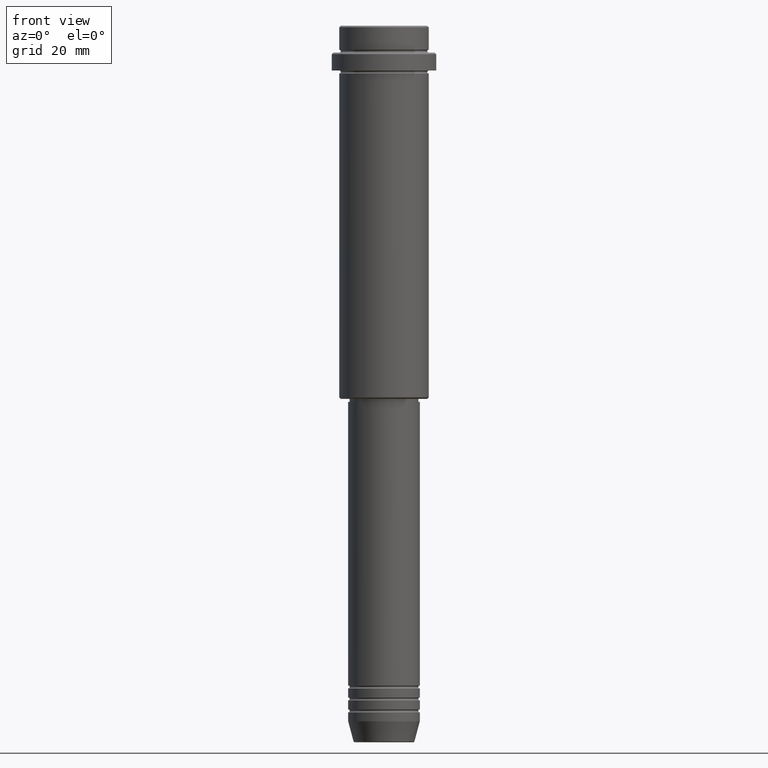
[diagram: clean part render]
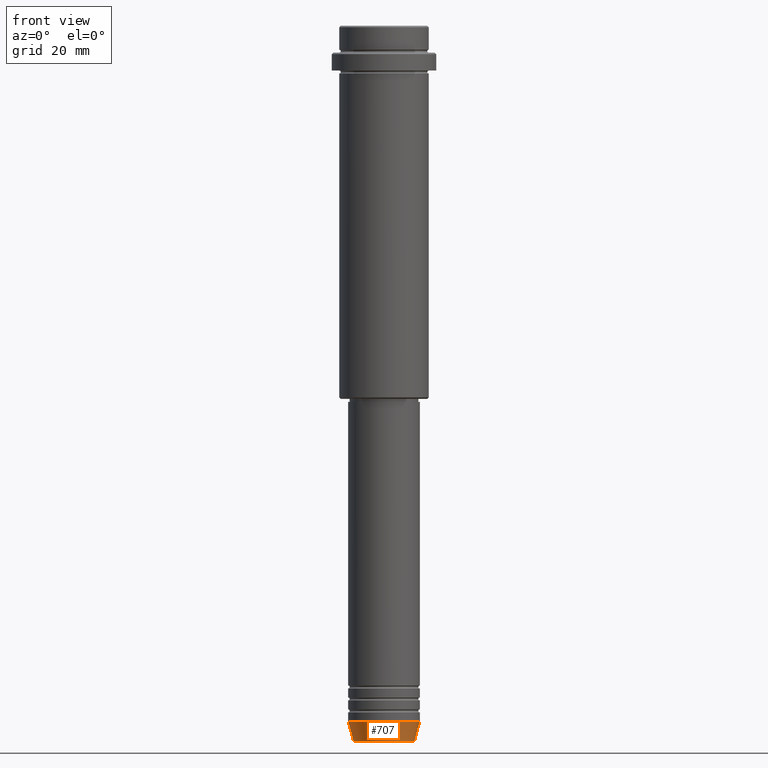
[diagram: same view with one face highlighted and labeled with its STEP entity id]
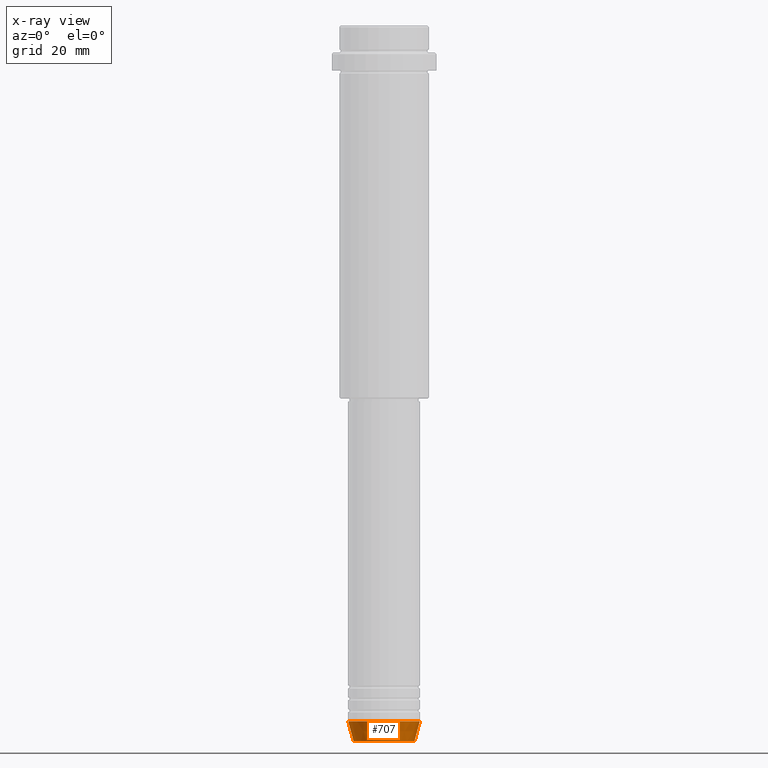
[diagram: x-ray of the same camera — body ghosted, the highlighted face saturated]
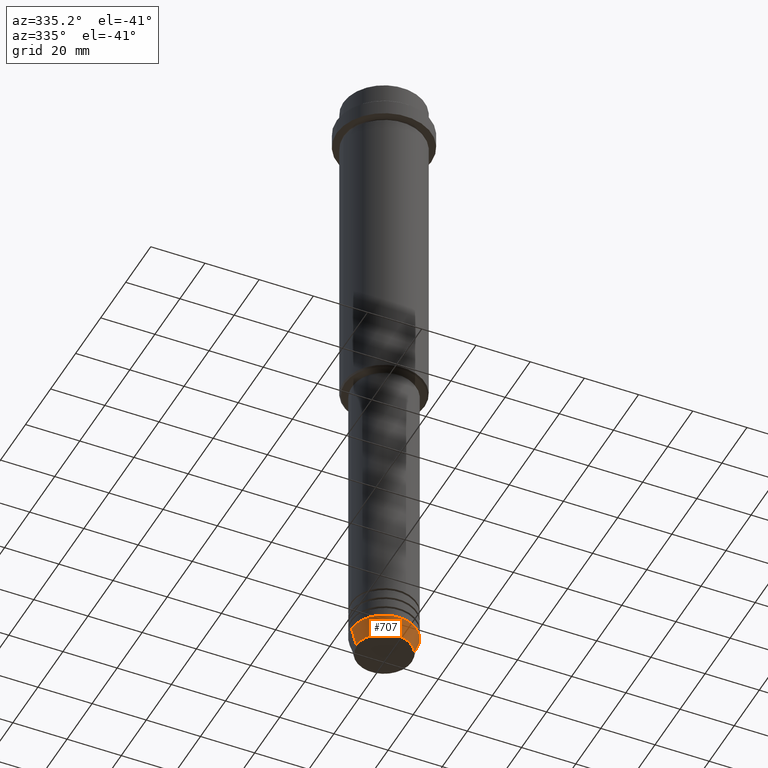
[diagram: same view with one face highlighted and labeled with its STEP entity id]
A machine part, front view. The second image highlights one B-rep face of the part: STEP entity #707.
The next image is the same camera in x-ray: the body ghosted, the highlighted face saturated — about 0% of this face is hidden behind the body in this view.
A second angle (auxiliary view) of the same face is appended — the face is thin or edge-on in the first view.
In plain terms, the highlighted conical surface has half-angle 15 deg.
Its self-contained STEP definition (entity closure, byte-faithful):
#3 = CONICAL_SURFACE ( 'NONE', #1357, 12.00000000000000000, 0.2617993877991500740 ) ;
#10 = CARTESIAN_POINT ( 'NONE',  ( 0.000000000000000000, 0.000000000000000000, -232.9999999999999716 ) ) ;
#14 = CARTESIAN_POINT ( 'NONE',  ( -12.00000000000000000, 1.469576158976823947E-15, -232.9999999999999716 ) ) ;
#55 = VERTEX_POINT ( 'NONE', #1033 ) ;
#96 = CIRCLE ( 'NONE', #330, 12.00000000000000000 ) ;
#154 = LINE ( 'NONE', #1356, #193 ) ;
#193 = VECTOR ( 'NONE', #1103, 1000.000000000000000 ) ;
#204 = DIRECTION ( 'NONE',  ( 1.000000000000000000, 0.000000000000000000, 0.000000000000000000 ) ) ;
#246 = EDGE_LOOP ( 'NONE', ( #742, #653, #671, #551 ) ) ;
#320 = CARTESIAN_POINT ( 'NONE',  ( -10.22365507213719127, 1.360806402472382744E-15, -239.6294095225512422 ) ) ;
#330 = AXIS2_PLACEMENT_3D ( 'NONE', #10, #866, #455 ) ;
#337 = EDGE_CURVE ( 'NONE', #892, #55, #154, .T. ) ;
#342 = EDGE_CURVE ( 'NONE', #1093, #55, #96, .T. ) ;
#366 = DIRECTION ( 'NONE',  ( -0.000000000000000000, -0.000000000000000000, 1.000000000000000000 ) ) ;
#440 = VERTEX_POINT ( 'NONE', #320 ) ;
#455 = DIRECTION ( 'NONE',  ( 1.000000000000000000, 0.000000000000000000, 0.000000000000000000 ) ) ;
#508 = CARTESIAN_POINT ( 'NONE',  ( 10.22365507213719127, 0.000000000000000000, -239.6294095225512422 ) ) ;
#526 = CARTESIAN_POINT ( 'NONE',  ( 0.000000000000000000, 0.000000000000000000, -239.6294095225512422 ) ) ;
#540 = CARTESIAN_POINT ( 'NONE',  ( -12.00000000000000000, 1.469576158976823947E-15, -232.9999999999999716 ) ) ;
#547 = DIRECTION ( 'NONE',  ( -0.2588190451025213501, 3.169619151431772337E-17, 0.9659258262890680902 ) ) ;
#551 = ORIENTED_EDGE ( 'NONE', *, *, #342, .F. ) ;
#574 = FACE_OUTER_BOUND ( 'NONE', #246, .T. ) ;
#653 = ORIENTED_EDGE ( 'NONE', *, *, #976, .T. ) ;
#671 = ORIENTED_EDGE ( 'NONE', *, *, #337, .T. ) ;
#707 = ADVANCED_FACE ( 'NONE', ( #574 ), #3, .T. ) ;
#742 = ORIENTED_EDGE ( 'NONE', *, *, #985, .F. ) ;
#830 = CIRCLE ( 'NONE', #1015, 10.22365507213719127 ) ;
#866 = DIRECTION ( 'NONE',  ( -0.000000000000000000, -0.000000000000000000, 1.000000000000000000 ) ) ;
#871 = LINE ( 'NONE', #540, #1311 ) ;
#892 = VERTEX_POINT ( 'NONE', #508 ) ;
#976 = EDGE_CURVE ( 'NONE', #440, #892, #830, .T. ) ;
#985 = EDGE_CURVE ( 'NONE', #440, #1093, #871, .T. ) ;
#1015 = AXIS2_PLACEMENT_3D ( 'NONE', #526, #1091, #204 ) ;
#1033 = CARTESIAN_POINT ( 'NONE',  ( 12.00000000000000000, 0.000000000000000000, -232.9999999999999716 ) ) ;
#1091 = DIRECTION ( 'NONE',  ( -0.000000000000000000, -0.000000000000000000, 1.000000000000000000 ) ) ;
#1093 = VERTEX_POINT ( 'NONE', #14 ) ;
#1103 = DIRECTION ( 'NONE',  ( 0.2588190451025213501, 0.000000000000000000, 0.9659258262890680902 ) ) ;
#1191 = CARTESIAN_POINT ( 'NONE',  ( 0.000000000000000000, 0.000000000000000000, -232.9999999999999716 ) ) ;
#1311 = VECTOR ( 'NONE', #547, 1000.000000000000000 ) ;
#1334 = DIRECTION ( 'NONE',  ( 1.000000000000000000, 0.000000000000000000, 0.000000000000000000 ) ) ;
#1356 = CARTESIAN_POINT ( 'NONE',  ( 12.00000000000000000, 0.000000000000000000, -232.9999999999999716 ) ) ;
#1357 = AXIS2_PLACEMENT_3D ( 'NONE', #1191, #366, #1334 ) ;